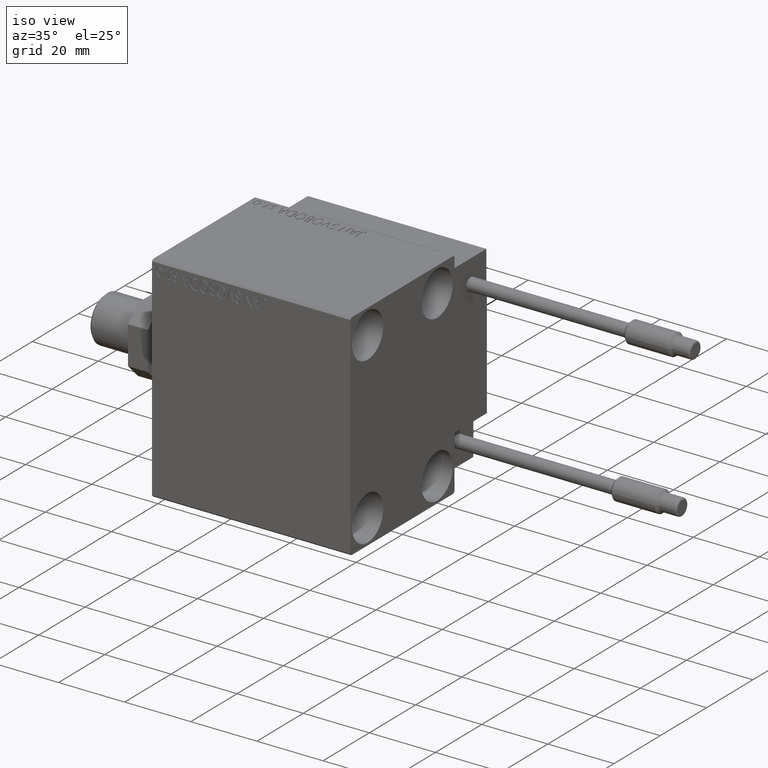
[diagram: clean part render]
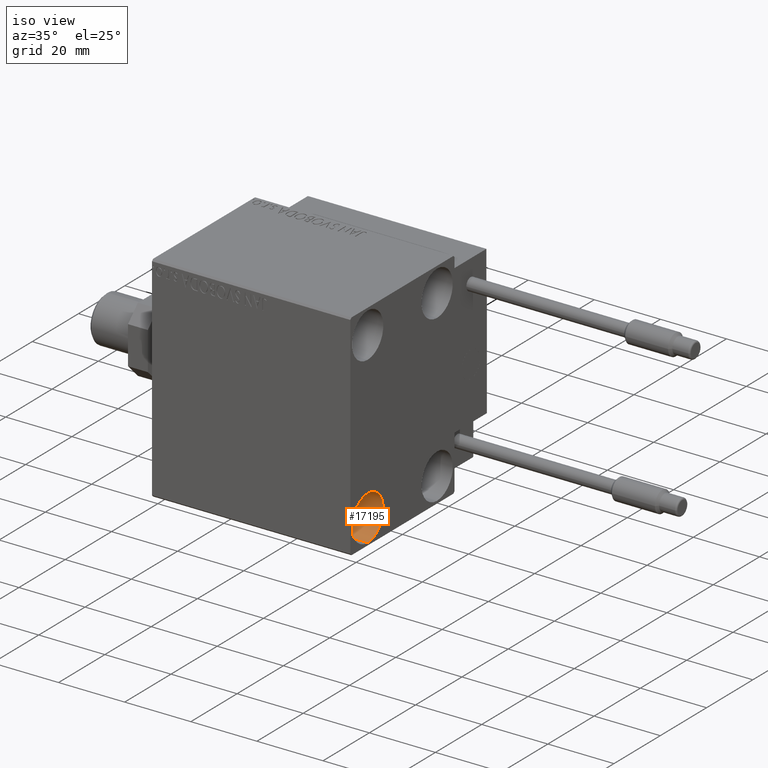
[diagram: same view with one face highlighted and labeled with its STEP entity id]
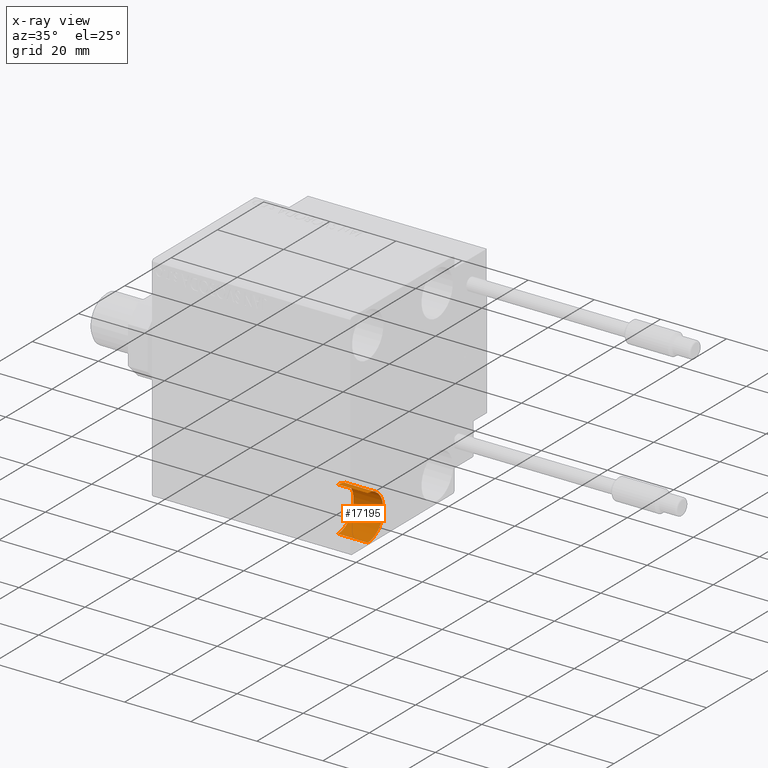
[diagram: x-ray of the same camera — body ghosted, the highlighted face saturated]
A machine part, iso view. The second image highlights one B-rep face of the part: STEP entity #17195.
The next image is the same camera in x-ray: the body ghosted, the highlighted face saturated — about 0% of this face is hidden behind the body in this view.
In plain terms, the highlighted cylindrical surface (edge-blend (fillet) strip) has radius 6.75 mm, axis along (1, 0, 0).
Its self-contained STEP definition (entity closure, byte-faithful):
#1812 = DIRECTION ( 'NONE',  ( -1.000000000000000000, -0.000000000000000000, -0.000000000000000000 ) ) ;
#2576 = DIRECTION ( 'NONE',  ( 0.000000000000000000, 0.000000000000000000, 1.000000000000000000 ) ) ;
#2631 = AXIS2_PLACEMENT_3D ( 'NONE', #37974, #1812, #2576 ) ;
#3193 = ORIENTED_EDGE ( 'NONE', *, *, #25494, .T. ) ;
#4026 = VERTEX_POINT ( 'NONE', #23544 ) ;
#8270 = CARTESIAN_POINT ( 'NONE',  ( 51.00000000000000000, -15.00000000000000355, -25.00000000000000000 ) ) ;
#9526 = CARTESIAN_POINT ( 'NONE',  ( 60.00000000000000000, -15.00000000000000355, -31.75000000000000000 ) ) ;
#11356 = VECTOR ( 'NONE', #21845, 1000.000000000000000 ) ;
#12380 = ORIENTED_EDGE ( 'NONE', *, *, #43985, .F. ) ;
#17195 = ADVANCED_FACE ( 'NONE', ( #35664 ), #43924, .F. ) ;
#21845 = DIRECTION ( 'NONE',  ( 1.000000000000000000, -0.000000000000000000, -0.000000000000000000 ) ) ;
#22088 = LINE ( 'NONE', #33723, #11356 ) ;
#22206 = DIRECTION ( 'NONE',  ( 0.000000000000000000, 0.000000000000000000, 1.000000000000000000 ) ) ;
#22742 = AXIS2_PLACEMENT_3D ( 'NONE', #8270, #43420, #44437 ) ;
#23544 = CARTESIAN_POINT ( 'NONE',  ( 51.00000000000000000, -15.00000000000000355, -18.25000000000000355 ) ) ;
#25103 = CARTESIAN_POINT ( 'NONE',  ( 51.00000000000000000, -15.00000000000000355, -18.25000000000000355 ) ) ;
#25494 = EDGE_CURVE ( 'NONE', #33016, #33054, #22088, .T. ) ;
#31257 = ORIENTED_EDGE ( 'NONE', *, *, #41709, .T. ) ;
#31586 = CIRCLE ( 'NONE', #38199, 6.749999999999999112 ) ;
#32010 = EDGE_LOOP ( 'NONE', ( #12380, #31257, #3193, #46938 ) ) ;
#32334 = DIRECTION ( 'NONE',  ( 1.000000000000000000, -0.000000000000000000, -0.000000000000000000 ) ) ;
#33016 = VERTEX_POINT ( 'NONE', #49544 ) ;
#33054 = VERTEX_POINT ( 'NONE', #9526 ) ;
#33723 = CARTESIAN_POINT ( 'NONE',  ( 51.00000000000000000, -15.00000000000000355, -31.75000000000000000 ) ) ;
#35664 = FACE_OUTER_BOUND ( 'NONE', #32010, .T. ) ;
#36213 = LINE ( 'NONE', #25103, #39851 ) ;
#37965 = DIRECTION ( 'NONE',  ( -1.000000000000000000, -0.000000000000000000, -0.000000000000000000 ) ) ;
#37974 = CARTESIAN_POINT ( 'NONE',  ( 51.00000000000000000, -15.00000000000000355, -25.00000000000000000 ) ) ;
#38199 = AXIS2_PLACEMENT_3D ( 'NONE', #40844, #37965, #22206 ) ;
#39851 = VECTOR ( 'NONE', #32334, 1000.000000000000000 ) ;
#40727 = EDGE_CURVE ( 'NONE', #43602, #33054, #31586, .T. ) ;
#40844 = CARTESIAN_POINT ( 'NONE',  ( 60.00000000000000000, -15.00000000000000355, -25.00000000000000000 ) ) ;
#41709 = EDGE_CURVE ( 'NONE', #4026, #33016, #43067, .T. ) ;
#43067 = CIRCLE ( 'NONE', #2631, 6.749999999999999112 ) ;
#43420 = DIRECTION ( 'NONE',  ( 1.000000000000000000, -0.000000000000000000, -0.000000000000000000 ) ) ;
#43602 = VERTEX_POINT ( 'NONE', #50258 ) ;
#43924 = CYLINDRICAL_SURFACE ( 'NONE', #22742, 6.749999999999999112 ) ;
#43985 = EDGE_CURVE ( 'NONE', #4026, #43602, #36213, .T. ) ;
#44437 = DIRECTION ( 'NONE',  ( 0.000000000000000000, 0.000000000000000000, -1.000000000000000000 ) ) ;
#46938 = ORIENTED_EDGE ( 'NONE', *, *, #40727, .F. ) ;
#49544 = CARTESIAN_POINT ( 'NONE',  ( 51.00000000000000000, -15.00000000000000355, -31.75000000000000000 ) ) ;
#50258 = CARTESIAN_POINT ( 'NONE',  ( 60.00000000000000000, -15.00000000000000355, -18.25000000000000355 ) ) ;